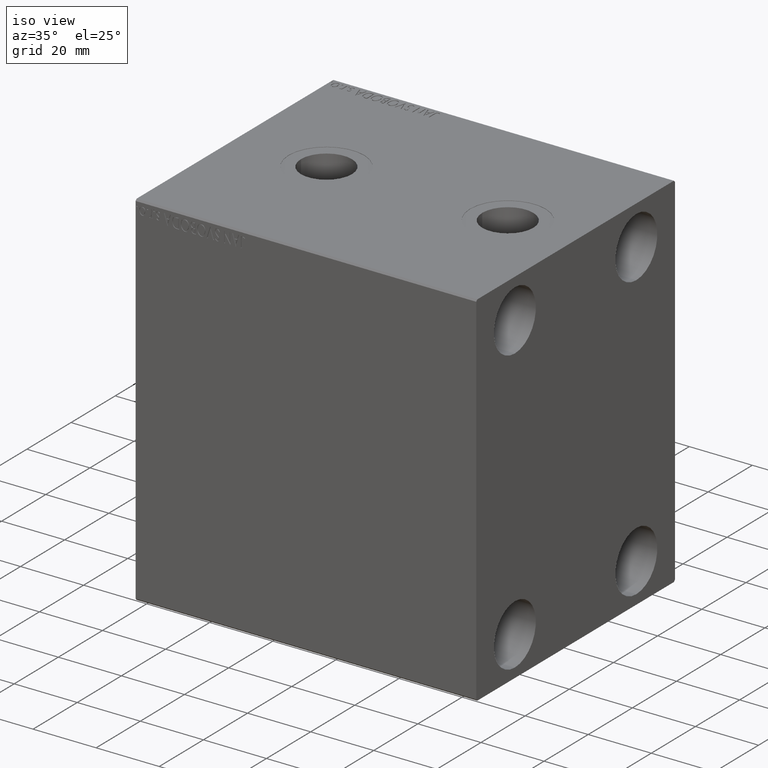
[diagram: clean part render]
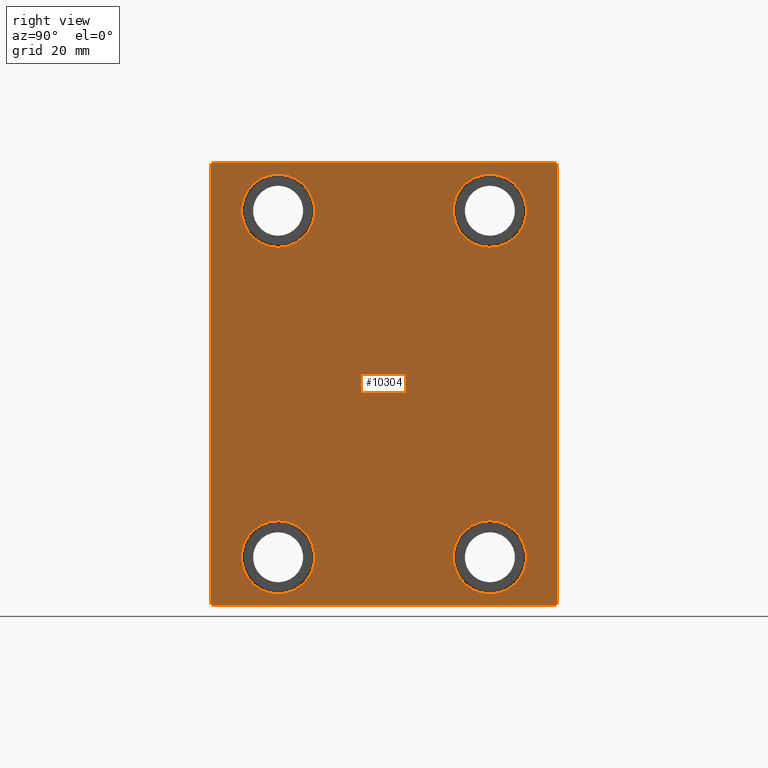
[diagram: tour spotlight — one face highlighted and labeled with its STEP entity id]
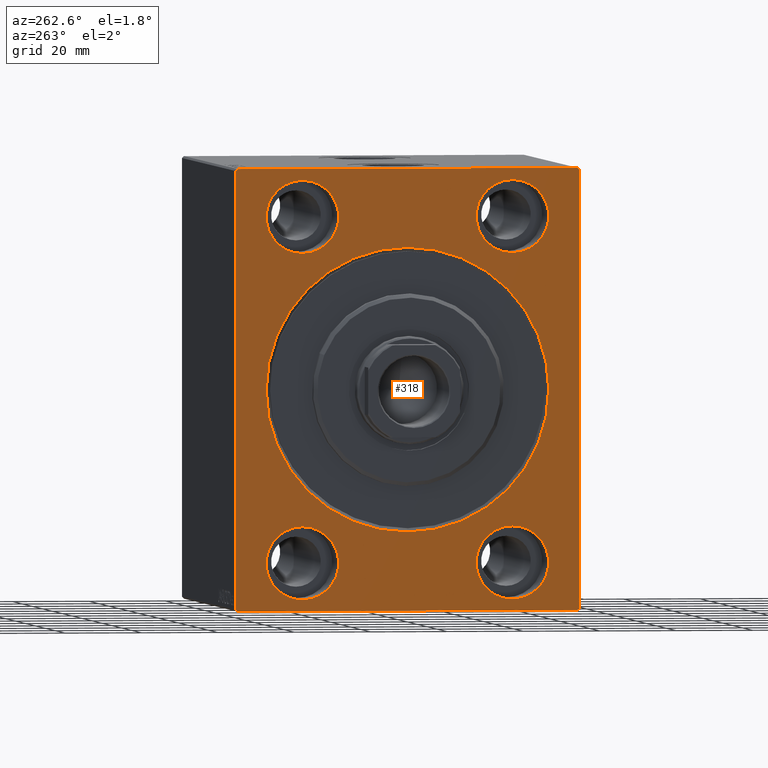
[diagram: tour spotlight — one face highlighted and labeled with its STEP entity id]
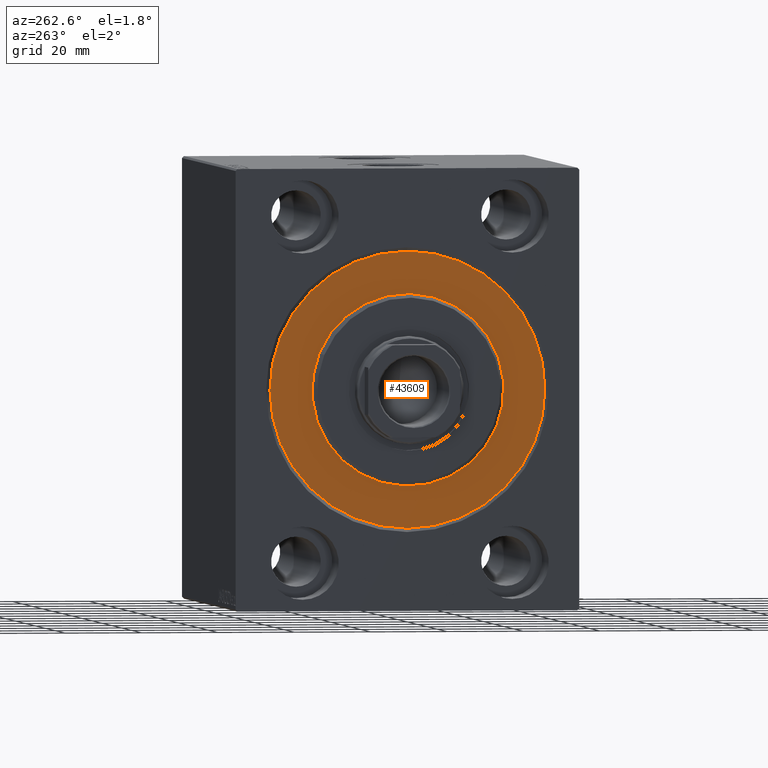
[diagram: tour spotlight — one face highlighted and labeled with its STEP entity id]
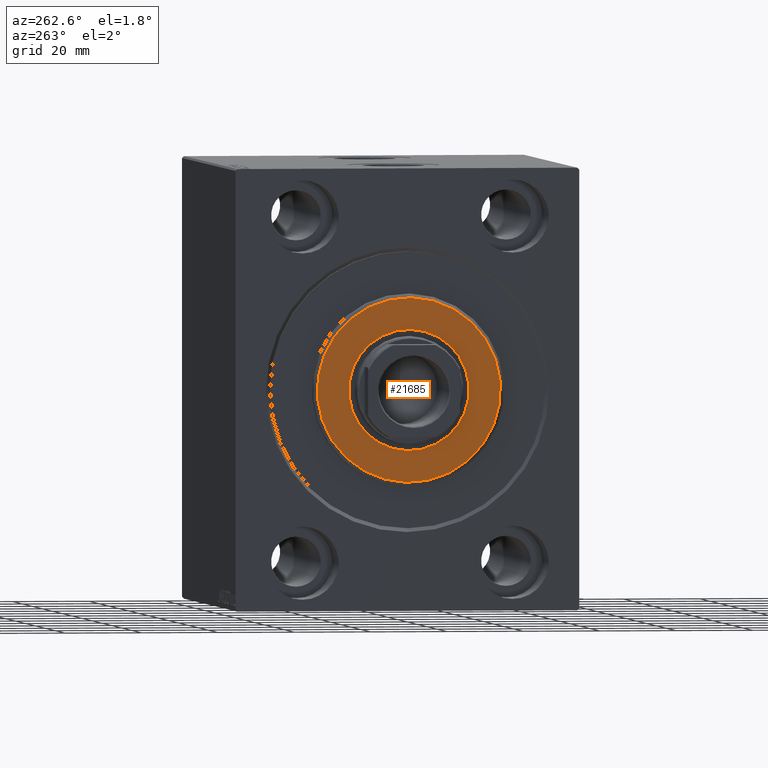
[diagram: tour spotlight — one face highlighted and labeled with its STEP entity id]
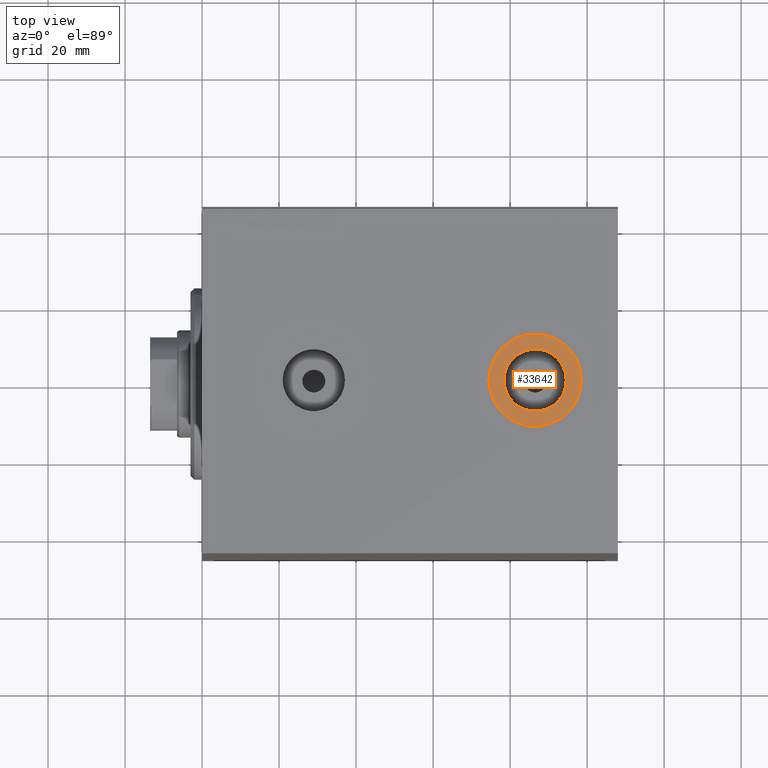
[diagram: tour spotlight — one face highlighted and labeled with its STEP entity id]
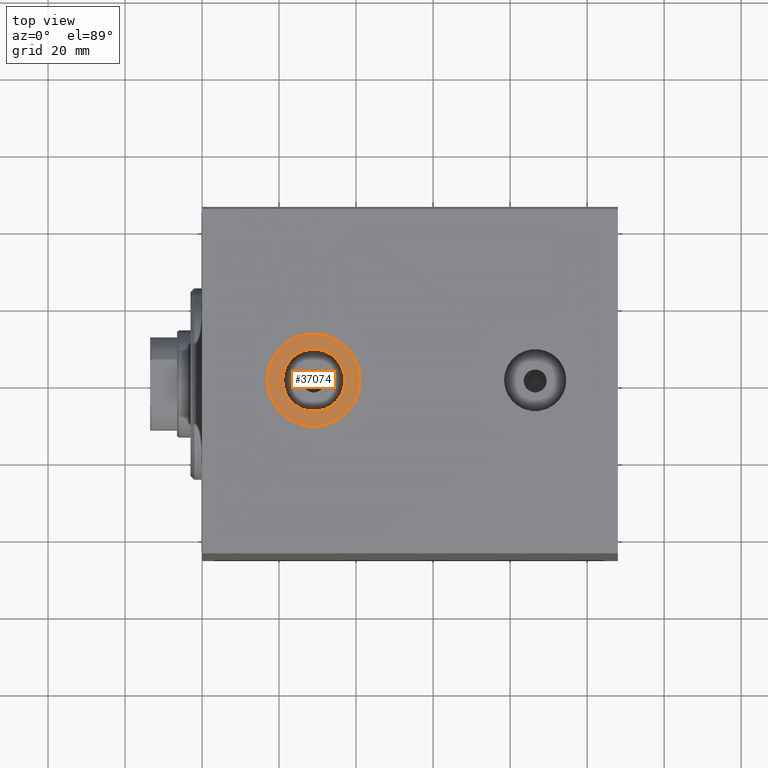
[diagram: tour spotlight — one face highlighted and labeled with its STEP entity id]
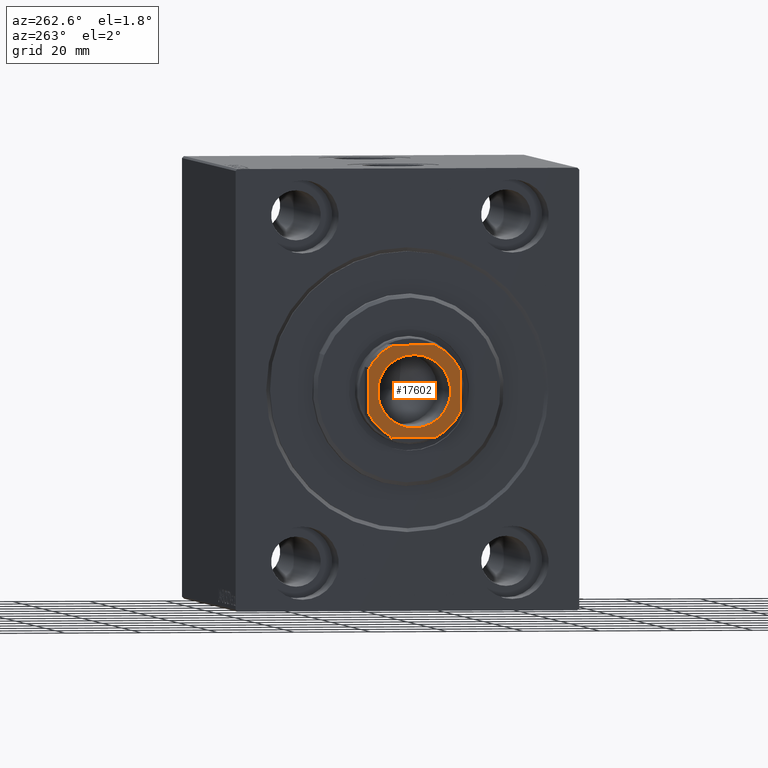
[diagram: tour spotlight — one face highlighted and labeled with its STEP entity id]
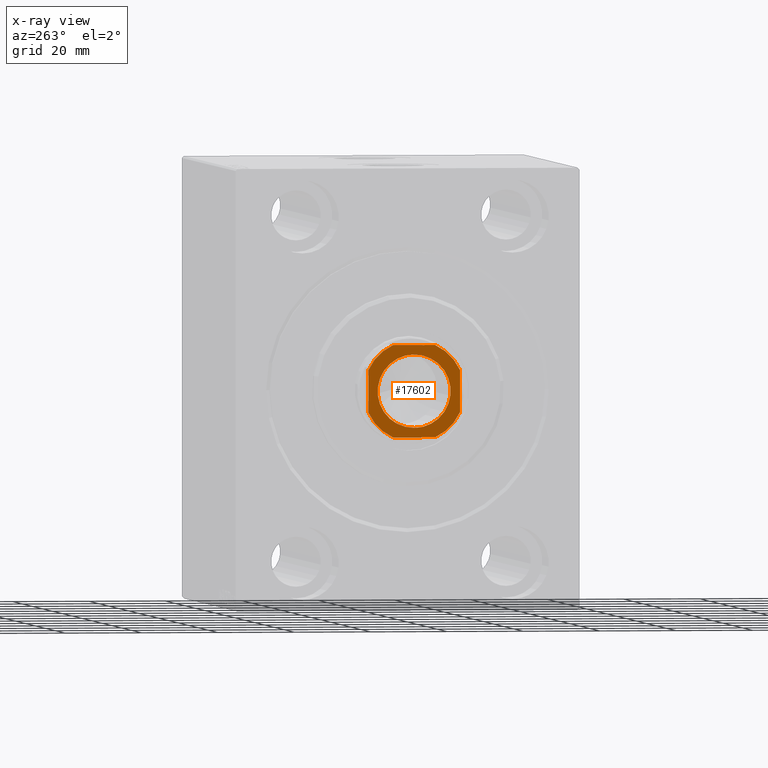
[diagram: x-ray of the same camera — body ghosted, this tour face saturated]
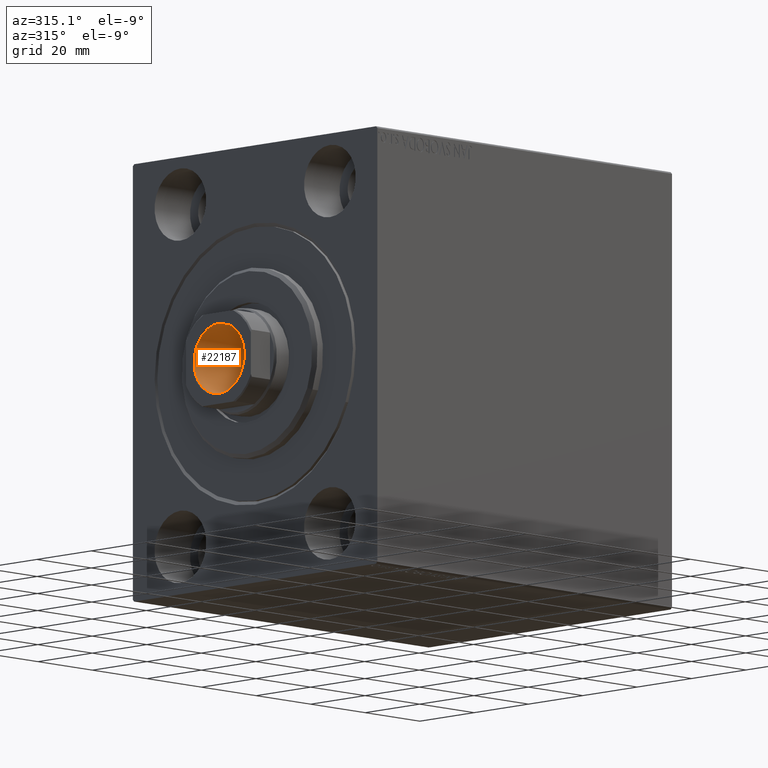
[diagram: tour spotlight — one face highlighted and labeled with its STEP entity id]
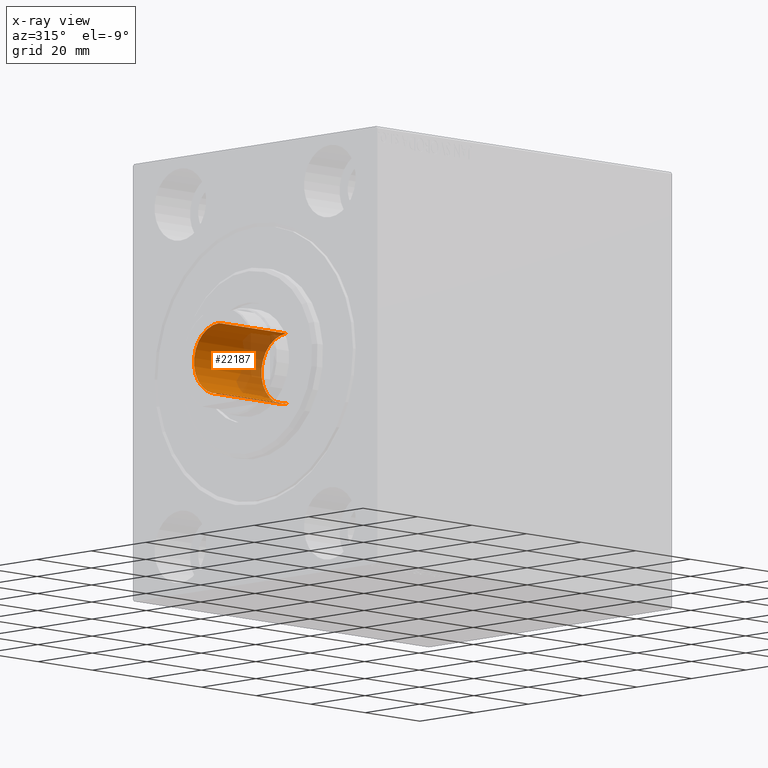
[diagram: x-ray of the same camera — body ghosted, this tour face saturated]
A machine part: a face-by-face anatomy tour. The part has 865 B-rep faces; the first image is the clean iso view, then the 8 largest visible faces are spotlighted one at a time (largest first), each with its STEP entity span.

Face 1 — right view, entity #10304. In plain terms, the highlighted planar face has unit normal (1, 0, 0).
Definition (entity closure, byte-faithful):
#628 = ORIENTED_EDGE ( 'NONE', *, *, #30317, .T. ) ;
#683 = AXIS2_PLACEMENT_3D ( 'NONE', #16046, #43463, #12917 ) ;
#1168 = EDGE_CURVE ( 'NONE', #32913, #8184, #42889, .T. ) ;
#2550 = ORIENTED_EDGE ( 'NONE', *, *, #12313, .T. ) ;
#2778 = VECTOR ( 'NONE', #16903, 1000.000000000000000 ) ;
#3304 = LINE ( 'NONE', #19608, #2778 ) ;
#3956 = EDGE_CURVE ( 'NONE', #39029, #24946, #7339, .T. ) ;
#4017 = ORIENTED_EDGE ( 'NONE', *, *, #16949, .T. ) ;
#5031 = EDGE_CURVE ( 'NONE', #5117, #32663, #38278, .T. ) ;
#5117 = VERTEX_POINT ( 'NONE', #9495 ) ;
#5896 = VERTEX_POINT ( 'NONE', #15630 ) ;
#6002 = AXIS2_PLACEMENT_3D ( 'NONE', #25160, #32733, #15789 ) ;
#6556 = EDGE_CURVE ( 'NONE', #24946, #39029, #20223, .T. ) ;
#6857 = VERTEX_POINT ( 'NONE', #25874 ) ;
#7061 = EDGE_LOOP ( 'NONE', ( #31252, #40210 ) ) ;
#7213 = DIRECTION ( 'NONE',  ( 0.000000000000000000, 0.000000000000000000, 1.000000000000000000 ) ) ;
#7339 = CIRCLE ( 'NONE', #15177, 9.500000000000001776 ) ;
#7540 = CARTESIAN_POINT ( 'NONE',  ( 108.0000000000000000, -27.50000000000000000, -35.49999999999998579 ) ) ;
#7558 = VECTOR ( 'NONE', #38270, 1000.000000000000000 ) ;
#7872 = CARTESIAN_POINT ( 'NONE',  ( 108.0000000000000000, 0.000000000000000000, 0.000000000000000000 ) ) ;
#8184 = VERTEX_POINT ( 'NONE', #21061 ) ;
#8944 = VECTOR ( 'NONE', #28766, 1000.000000000000114 ) ;
#9119 = DIRECTION ( 'NONE',  ( 0.000000000000000000, 0.000000000000000000, 1.000000000000000000 ) ) ;
#9210 = DIRECTION ( 'NONE',  ( -0.000000000000000000, 0.7071067811865474617, 0.7071067811865474617 ) ) ;
#9495 = CARTESIAN_POINT ( 'NONE',  ( 108.0000000000000000, 44.50000000000002842, 57.50000000000000711 ) ) ;
#9903 = LINE ( 'NONE', #26029, #28882 ) ;
#9936 = CIRCLE ( 'NONE', #683, 9.500000000000001776 ) ;
#10304 = ADVANCED_FACE ( 'NONE', ( #14561, #28153, #14117, #10982, #17681 ), #38411, .T. ) ;
#10531 = DIRECTION ( 'NONE',  ( 0.000000000000000000, -0.7071067811865474617, -0.7071067811865474617 ) ) ;
#10644 = EDGE_CURVE ( 'NONE', #31316, #21210, #24980, .T. ) ;
#10827 = AXIS2_PLACEMENT_3D ( 'NONE', #21592, #41654, #21157 ) ;
#10895 = ORIENTED_EDGE ( 'NONE', *, *, #10644, .T. ) ;
#10982 = FACE_BOUND ( 'NONE', #7061, .T. ) ;
#11801 = CARTESIAN_POINT ( 'NONE',  ( 108.0000000000000000, 44.50000000000001421, -57.50000000000000711 ) ) ;
#11974 = ORIENTED_EDGE ( 'NONE', *, *, #15280, .T. ) ;
#11990 = CARTESIAN_POINT ( 'NONE',  ( 108.0000000000000000, -45.00000000000000000, -57.00000000000003553 ) ) ;
#12313 = EDGE_CURVE ( 'NONE', #8184, #32913, #23091, .T. ) ;
#12389 = DIRECTION ( 'NONE',  ( 0.000000000000000000, 0.000000000000000000, 1.000000000000000000 ) ) ;
#12869 = DIRECTION ( 'NONE',  ( -0.000000000000000000, -0.7071067811865474617, 0.7071067811865474617 ) ) ;
#12917 = DIRECTION ( 'NONE',  ( 0.000000000000000000, 0.000000000000000000, 1.000000000000000000 ) ) ;
#13650 = VERTEX_POINT ( 'NONE', #7540 ) ;
#13669 = DIRECTION ( 'NONE',  ( 1.000000000000000000, 0.000000000000000000, 0.000000000000000000 ) ) ;
#13744 = DIRECTION ( 'NONE',  ( 0.000000000000000000, 0.000000000000000000, 1.000000000000000000 ) ) ;
#14026 = EDGE_CURVE ( 'NONE', #13650, #29673, #37399, .T. ) ;
#14117 = FACE_BOUND ( 'NONE', #38916, .T. ) ;
#14561 = FACE_BOUND ( 'NONE', #42857, .T. ) ;
#15177 = AXIS2_PLACEMENT_3D ( 'NONE', #33390, #39650, #9119 ) ;
#15280 = EDGE_CURVE ( 'NONE', #20555, #5896, #19033, .T. ) ;
#15630 = CARTESIAN_POINT ( 'NONE',  ( 108.0000000000000000, 45.00000000000001421, -57.00000000000003553 ) ) ;
#15731 = CARTESIAN_POINT ( 'NONE',  ( 108.0000000000000000, -27.49999999999998934, 45.00000000000000711 ) ) ;
#15789 = DIRECTION ( 'NONE',  ( 0.000000000000000000, 0.000000000000000000, 1.000000000000000000 ) ) ;
#15938 = VECTOR ( 'NONE', #18887, 1000.000000000000000 ) ;
#16046 = CARTESIAN_POINT ( 'NONE',  ( 108.0000000000000000, -27.50000000000000000, -44.99999999999998579 ) ) ;
#16866 = ORIENTED_EDGE ( 'NONE', *, *, #3956, .T. ) ;
#16903 = DIRECTION ( 'NONE',  ( 0.000000000000000000, 0.000000000000000000, -1.000000000000000000 ) ) ;
#16949 = EDGE_CURVE ( 'NONE', #18639, #6857, #41740, .T. ) ;
#17681 = FACE_OUTER_BOUND ( 'NONE', #25528, .T. ) ;
#17741 = EDGE_CURVE ( 'NONE', #5896, #28797, #41840, .T. ) ;
#18336 = EDGE_CURVE ( 'NONE', #32663, #33824, #38390, .T. ) ;
#18639 = VERTEX_POINT ( 'NONE', #38713 ) ;
#18887 = DIRECTION ( 'NONE',  ( 0.000000000000000000, -1.000000000000000000, -1.541976423090495387E-16 ) ) ;
#19033 = LINE ( 'NONE', #43314, #21048 ) ;
#19562 = LINE ( 'NONE', #26880, #39125 ) ;
#19608 = CARTESIAN_POINT ( 'NONE',  ( 108.0000000000000000, -45.00000000000000000, 57.49999999999999289 ) ) ;
#19764 = CARTESIAN_POINT ( 'NONE',  ( 108.0000000000000000, -27.50000000000000000, -54.49999999999998579 ) ) ;
#20116 = ORIENTED_EDGE ( 'NONE', *, *, #6556, .T. ) ;
#20223 = CIRCLE ( 'NONE', #29493, 9.500000000000001776 ) ;
#20555 = VERTEX_POINT ( 'NONE', #11801 ) ;
#20741 = AXIS2_PLACEMENT_3D ( 'NONE', #42347, #28971, #21403 ) ;
#20752 = ORIENTED_EDGE ( 'NONE', *, *, #32498, .T. ) ;
#21048 = VECTOR ( 'NONE', #9210, 1000.000000000000114 ) ;
#21061 = CARTESIAN_POINT ( 'NONE',  ( 108.0000000000000000, 27.49999999999998934, -54.49999999999998579 ) ) ;
#21157 = DIRECTION ( 'NONE',  ( 0.000000000000000000, 0.000000000000000000, 1.000000000000000000 ) ) ;
#21210 = VERTEX_POINT ( 'NONE', #33289 ) ;
#21403 = DIRECTION ( 'NONE',  ( 0.000000000000000000, 0.000000000000000000, 1.000000000000000000 ) ) ;
#21592 = CARTESIAN_POINT ( 'NONE',  ( 108.0000000000000000, 27.49999999999998934, -44.99999999999998579 ) ) ;
#21793 = AXIS2_PLACEMENT_3D ( 'NONE', #15731, #42930, #12389 ) ;
#22186 = CIRCLE ( 'NONE', #20741, 9.500000000000001776 ) ;
#22474 = DIRECTION ( 'NONE',  ( 0.000000000000000000, 1.000000000000000000, 0.000000000000000000 ) ) ;
#22642 = ORIENTED_EDGE ( 'NONE', *, *, #17741, .T. ) ;
#23091 = CIRCLE ( 'NONE', #6002, 9.500000000000001776 ) ;
#23280 = DIRECTION ( 'NONE',  ( -1.000000000000000000, -0.000000000000000000, -0.000000000000000000 ) ) ;
#23756 = CARTESIAN_POINT ( 'NONE',  ( 108.0000000000000000, 27.49999999999998934, -35.49999999999998579 ) ) ;
#24946 = VERTEX_POINT ( 'NONE', #39889 ) ;
#24980 = LINE ( 'NONE', #25421, #8944 ) ;
#25160 = CARTESIAN_POINT ( 'NONE',  ( 108.0000000000000000, 27.49999999999998934, -44.99999999999998579 ) ) ;
#25421 = CARTESIAN_POINT ( 'NONE',  ( 108.0000000000000000, -51.00000000000001421, -51.00000000000001421 ) ) ;
#25528 = EDGE_LOOP ( 'NONE', ( #37350, #39923, #628, #10895, #34108, #11974, #22642, #43517 ) ) ;
#25557 = CARTESIAN_POINT ( 'NONE',  ( 108.0000000000000000, 45.00000000000000000, 57.50000000000000711 ) ) ;
#25874 = CARTESIAN_POINT ( 'NONE',  ( 108.0000000000000000, -27.49999999999998934, 35.50000000000000711 ) ) ;
#26029 = CARTESIAN_POINT ( 'NONE',  ( 108.0000000000000000, -45.00000000000000000, -57.50000000000000711 ) ) ;
#26194 = EDGE_LOOP ( 'NONE', ( #20752, #4017 ) ) ;
#26880 = CARTESIAN_POINT ( 'NONE',  ( 108.0000000000000000, 51.00000000000001421, 51.00000000000001421 ) ) ;
#27634 = CARTESIAN_POINT ( 'NONE',  ( 108.0000000000000000, 27.50000000000001066, 54.50000000000000711 ) ) ;
#28153 = FACE_BOUND ( 'NONE', #26194, .T. ) ;
#28674 = CARTESIAN_POINT ( 'NONE',  ( 108.0000000000000000, 45.00000000000001421, -57.50000000000000711 ) ) ;
#28766 = DIRECTION ( 'NONE',  ( -0.000000000000000000, 0.7071067811865474617, -0.7071067811865474617 ) ) ;
#28797 = VERTEX_POINT ( 'NONE', #35362 ) ;
#28882 = VECTOR ( 'NONE', #22474, 1000.000000000000000 ) ;
#28971 = DIRECTION ( 'NONE',  ( -1.000000000000000000, -0.000000000000000000, -0.000000000000000000 ) ) ;
#29493 = AXIS2_PLACEMENT_3D ( 'NONE', #37819, #33593, #13744 ) ;
#29673 = VERTEX_POINT ( 'NONE', #19764 ) ;
#30317 = EDGE_CURVE ( 'NONE', #33824, #31316, #3304, .T. ) ;
#31142 = EDGE_CURVE ( 'NONE', #29673, #13650, #9936, .T. ) ;
#31252 = ORIENTED_EDGE ( 'NONE', *, *, #31142, .T. ) ;
#31316 = VERTEX_POINT ( 'NONE', #11990 ) ;
#31447 = EDGE_CURVE ( 'NONE', #28797, #5117, #19562, .T. ) ;
#31467 = CARTESIAN_POINT ( 'NONE',  ( 108.0000000000000000, -51.00000000000000000, 51.00000000000000000 ) ) ;
#32498 = EDGE_CURVE ( 'NONE', #6857, #18639, #22186, .T. ) ;
#32513 = VECTOR ( 'NONE', #10531, 1000.000000000000114 ) ;
#32663 = VERTEX_POINT ( 'NONE', #42782 ) ;
#32733 = DIRECTION ( 'NONE',  ( -1.000000000000000000, -0.000000000000000000, -0.000000000000000000 ) ) ;
#32913 = VERTEX_POINT ( 'NONE', #23756 ) ;
#33289 = CARTESIAN_POINT ( 'NONE',  ( 108.0000000000000000, -44.50000000000002842, -57.50000000000000711 ) ) ;
#33390 = CARTESIAN_POINT ( 'NONE',  ( 108.0000000000000000, 27.50000000000001066, 45.00000000000000711 ) ) ;
#33593 = DIRECTION ( 'NONE',  ( -1.000000000000000000, -0.000000000000000000, -0.000000000000000000 ) ) ;
#33824 = VERTEX_POINT ( 'NONE', #42301 ) ;
#34108 = ORIENTED_EDGE ( 'NONE', *, *, #42917, .T. ) ;
#34844 = DIRECTION ( 'NONE',  ( 0.000000000000000000, 0.000000000000000000, -1.000000000000000000 ) ) ;
#35362 = CARTESIAN_POINT ( 'NONE',  ( 108.0000000000000000, 45.00000000000000000, 57.00000000000000711 ) ) ;
#36869 = CARTESIAN_POINT ( 'NONE',  ( 108.0000000000000000, -27.50000000000000000, -44.99999999999998579 ) ) ;
#37350 = ORIENTED_EDGE ( 'NONE', *, *, #5031, .T. ) ;
#37399 = CIRCLE ( 'NONE', #41671, 9.500000000000001776 ) ;
#37819 = CARTESIAN_POINT ( 'NONE',  ( 108.0000000000000000, 27.50000000000001066, 45.00000000000000711 ) ) ;
#38270 = DIRECTION ( 'NONE',  ( 0.000000000000000000, -1.206764157201257045E-16, 1.000000000000000000 ) ) ;
#38278 = LINE ( 'NONE', #25557, #15938 ) ;
#38390 = LINE ( 'NONE', #31467, #32513 ) ;
#38411 = PLANE ( 'NONE',  #41675 ) ;
#38713 = CARTESIAN_POINT ( 'NONE',  ( 108.0000000000000000, -27.49999999999998934, 54.50000000000000711 ) ) ;
#38916 = EDGE_LOOP ( 'NONE', ( #20116, #16866 ) ) ;
#39029 = VERTEX_POINT ( 'NONE', #27634 ) ;
#39125 = VECTOR ( 'NONE', #12869, 1000.000000000000114 ) ;
#39650 = DIRECTION ( 'NONE',  ( -1.000000000000000000, -0.000000000000000000, -0.000000000000000000 ) ) ;
#39889 = CARTESIAN_POINT ( 'NONE',  ( 108.0000000000000000, 27.50000000000001066, 35.50000000000000711 ) ) ;
#39923 = ORIENTED_EDGE ( 'NONE', *, *, #18336, .T. ) ;
#40210 = ORIENTED_EDGE ( 'NONE', *, *, #14026, .T. ) ;
#41654 = DIRECTION ( 'NONE',  ( -1.000000000000000000, -0.000000000000000000, -0.000000000000000000 ) ) ;
#41671 = AXIS2_PLACEMENT_3D ( 'NONE', #36869, #23280, #7213 ) ;
#41675 = AXIS2_PLACEMENT_3D ( 'NONE', #7872, #13669, #34844 ) ;
#41740 = CIRCLE ( 'NONE', #21793, 9.500000000000001776 ) ;
#41840 = LINE ( 'NONE', #28674, #7558 ) ;
#42301 = CARTESIAN_POINT ( 'NONE',  ( 108.0000000000000000, -45.00000000000000000, 56.99999999999999289 ) ) ;
#42347 = CARTESIAN_POINT ( 'NONE',  ( 108.0000000000000000, -27.49999999999998934, 45.00000000000000711 ) ) ;
#42782 = CARTESIAN_POINT ( 'NONE',  ( 108.0000000000000000, -44.49999999999997158, 57.49999999999999289 ) ) ;
#42857 = EDGE_LOOP ( 'NONE', ( #2550, #43188 ) ) ;
#42889 = CIRCLE ( 'NONE', #10827, 9.500000000000001776 ) ;
#42917 = EDGE_CURVE ( 'NONE', #21210, #20555, #9903, .T. ) ;
#42930 = DIRECTION ( 'NONE',  ( -1.000000000000000000, -0.000000000000000000, -0.000000000000000000 ) ) ;
#43188 = ORIENTED_EDGE ( 'NONE', *, *, #1168, .T. ) ;
#43314 = CARTESIAN_POINT ( 'NONE',  ( 108.0000000000000000, 51.00000000000001421, -51.00000000000001421 ) ) ;
#43463 = DIRECTION ( 'NONE',  ( -1.000000000000000000, -0.000000000000000000, -0.000000000000000000 ) ) ;
#43517 = ORIENTED_EDGE ( 'NONE', *, *, #31447, .T. ) ;

Face 2 — auxiliary view, entity #318. In plain terms, the highlighted planar face has unit normal (1, 0, 0).
Definition (entity closure, byte-faithful):
#123 = ORIENTED_EDGE ( 'NONE', *, *, #7926, .F. ) ;
#318 = ADVANCED_FACE ( 'NONE', ( #32334, #5371, #18971, #8494, #32559, #22092 ), #13788, .F. ) ;
#569 = ORIENTED_EDGE ( 'NONE', *, *, #27251, .F. ) ;
#866 = DIRECTION ( 'NONE',  ( -1.000000000000000000, 0.000000000000000000, 0.000000000000000000 ) ) ;
#944 = DIRECTION ( 'NONE',  ( 0.000000000000000000, 0.000000000000000000, -1.000000000000000000 ) ) ;
#946 = EDGE_CURVE ( 'NONE', #37444, #6416, #3761, .T. ) ;
#1060 = VERTEX_POINT ( 'NONE', #36773 ) ;
#1547 = DIRECTION ( 'NONE',  ( -1.000000000000000000, 0.000000000000000000, 0.000000000000000000 ) ) ;
#1698 = CARTESIAN_POINT ( 'NONE',  ( 0.000000000000000000, 44.50000000000002842, 57.50000000000000711 ) ) ;
#1748 = CIRCLE ( 'NONE', #26637, 9.500000000000001776 ) ;
#2203 = DIRECTION ( 'NONE',  ( 0.000000000000000000, 0.000000000000000000, 1.000000000000000000 ) ) ;
#2222 = DIRECTION ( 'NONE',  ( 0.000000000000000000, -0.7071067811865474617, -0.7071067811865474617 ) ) ;
#2601 = CIRCLE ( 'NONE', #8306, 37.00000000000003553 ) ;
#2898 = EDGE_CURVE ( 'NONE', #37444, #36819, #12504, .T. ) ;
#3328 = CARTESIAN_POINT ( 'NONE',  ( 0.000000000000000000, 44.50000000000002842, 57.50000000000000711 ) ) ;
#3761 = LINE ( 'NONE', #3328, #42162 ) ;
#3900 = EDGE_LOOP ( 'NONE', ( #6328, #33016 ) ) ;
#4115 = CARTESIAN_POINT ( 'NONE',  ( 0.000000000000000000, -27.49999999999998934, 45.00000000000000711 ) ) ;
#4521 = EDGE_CURVE ( 'NONE', #1060, #25202, #21721, .T. ) ;
#4603 = CIRCLE ( 'NONE', #27334, 9.500000000000001776 ) ;
#4806 = ORIENTED_EDGE ( 'NONE', *, *, #20539, .F. ) ;
#4877 = DIRECTION ( 'NONE',  ( 0.000000000000000000, 0.000000000000000000, 1.000000000000000000 ) ) ;
#4887 = CIRCLE ( 'NONE', #22711, 37.00000000000003553 ) ;
#5049 = CARTESIAN_POINT ( 'NONE',  ( 0.000000000000000000, 27.50000000000001066, 35.50000000000000711 ) ) ;
#5119 = DIRECTION ( 'NONE',  ( -1.000000000000000000, 0.000000000000000000, 0.000000000000000000 ) ) ;
#5371 = FACE_BOUND ( 'NONE', #3900, .T. ) ;
#5785 = EDGE_CURVE ( 'NONE', #16851, #15791, #43686, .T. ) ;
#5815 = ORIENTED_EDGE ( 'NONE', *, *, #946, .T. ) ;
#5910 = ORIENTED_EDGE ( 'NONE', *, *, #31684, .F. ) ;
#6244 = CARTESIAN_POINT ( 'NONE',  ( 0.000000000000000000, 45.00000000000000000, 57.50000000000000711 ) ) ;
#6328 = ORIENTED_EDGE ( 'NONE', *, *, #19787, .F. ) ;
#6343 = CIRCLE ( 'NONE', #36259, 9.500000000000001776 ) ;
#6383 = EDGE_LOOP ( 'NONE', ( #4806, #40785 ) ) ;
#6416 = VERTEX_POINT ( 'NONE', #17316 ) ;
#6494 = ORIENTED_EDGE ( 'NONE', *, *, #2898, .F. ) ;
#6497 = CARTESIAN_POINT ( 'NONE',  ( 0.000000000000000000, 44.50000000000001421, -57.50000000000000711 ) ) ;
#6663 = AXIS2_PLACEMENT_3D ( 'NONE', #20774, #10298, #6960 ) ;
#6887 = CARTESIAN_POINT ( 'NONE',  ( 0.000000000000000000, 0.000000000000000000, 0.000000000000000000 ) ) ;
#6923 = DIRECTION ( 'NONE',  ( -1.000000000000000000, 0.000000000000000000, 0.000000000000000000 ) ) ;
#6960 = DIRECTION ( 'NONE',  ( 0.000000000000000000, 0.000000000000000000, 1.000000000000000000 ) ) ;
#7926 = EDGE_CURVE ( 'NONE', #15791, #16851, #4603, .T. ) ;
#8144 = AXIS2_PLACEMENT_3D ( 'NONE', #4115, #34875, #17714 ) ;
#8204 = EDGE_CURVE ( 'NONE', #12952, #10478, #20960, .T. ) ;
#8303 = EDGE_CURVE ( 'NONE', #16371, #31163, #1748, .T. ) ;
#8306 = AXIS2_PLACEMENT_3D ( 'NONE', #37731, #17885, #944 ) ;
#8482 = CARTESIAN_POINT ( 'NONE',  ( 0.000000000000000000, 45.00000000000001421, -57.00000000000003553 ) ) ;
#8494 = FACE_BOUND ( 'NONE', #41593, .T. ) ;
#8901 = CARTESIAN_POINT ( 'NONE',  ( 0.000000000000000000, -27.50000000000000000, -44.99999999999998579 ) ) ;
#9234 = CARTESIAN_POINT ( 'NONE',  ( 0.000000000000000000, 27.49999999999998934, -44.99999999999998579 ) ) ;
#9632 = DIRECTION ( 'NONE',  ( 0.000000000000000000, -1.206764157201257045E-16, 1.000000000000000000 ) ) ;
#9790 = DIRECTION ( 'NONE',  ( 0.000000000000000000, 0.000000000000000000, -1.000000000000000000 ) ) ;
#9997 = CARTESIAN_POINT ( 'NONE',  ( 0.000000000000000000, -27.50000000000000000, -44.99999999999998579 ) ) ;
#10298 = DIRECTION ( 'NONE',  ( -1.000000000000000000, 0.000000000000000000, 0.000000000000000000 ) ) ;
#10478 = VERTEX_POINT ( 'NONE', #25906 ) ;
#10543 = VECTOR ( 'NONE', #17776, 1000.000000000000000 ) ;
#11050 = VECTOR ( 'NONE', #2222, 1000.000000000000114 ) ;
#11217 = ORIENTED_EDGE ( 'NONE', *, *, #5785, .F. ) ;
#12504 = LINE ( 'NONE', #6244, #25089 ) ;
#12918 = VECTOR ( 'NONE', #18290, 1000.000000000000114 ) ;
#12952 = VERTEX_POINT ( 'NONE', #36839 ) ;
#13348 = AXIS2_PLACEMENT_3D ( 'NONE', #8901, #5119, #15802 ) ;
#13372 = ORIENTED_EDGE ( 'NONE', *, *, #28382, .T. ) ;
#13386 = CARTESIAN_POINT ( 'NONE',  ( 0.000000000000000000, -44.50000000000002842, -57.50000000000000711 ) ) ;
#13389 = DIRECTION ( 'NONE',  ( 0.000000000000000000, 0.000000000000000000, 1.000000000000000000 ) ) ;
#13788 = PLANE ( 'NONE',  #34287 ) ;
#14046 = CIRCLE ( 'NONE', #13348, 9.500000000000001776 ) ;
#15028 = CARTESIAN_POINT ( 'NONE',  ( 0.000000000000000000, -45.00000000000000000, 57.49999999999999289 ) ) ;
#15628 = CARTESIAN_POINT ( 'NONE',  ( 0.000000000000000000, 27.49999999999998934, -54.49999999999998579 ) ) ;
#15791 = VERTEX_POINT ( 'NONE', #24489 ) ;
#15802 = DIRECTION ( 'NONE',  ( 0.000000000000000000, 0.000000000000000000, 1.000000000000000000 ) ) ;
#16258 = DIRECTION ( 'NONE',  ( 0.000000000000000000, 0.000000000000000000, 1.000000000000000000 ) ) ;
#16371 = VERTEX_POINT ( 'NONE', #15628 ) ;
#16851 = VERTEX_POINT ( 'NONE', #5049 ) ;
#17140 = DIRECTION ( 'NONE',  ( -0.000000000000000000, 0.7071067811865474617, -0.7071067811865474617 ) ) ;
#17316 = CARTESIAN_POINT ( 'NONE',  ( 0.000000000000000000, 45.00000000000000000, 57.00000000000000711 ) ) ;
#17714 = DIRECTION ( 'NONE',  ( 0.000000000000000000, 0.000000000000000000, 1.000000000000000000 ) ) ;
#17776 = DIRECTION ( 'NONE',  ( 0.000000000000000000, 1.000000000000000000, 0.000000000000000000 ) ) ;
#17885 = DIRECTION ( 'NONE',  ( 1.000000000000000000, 0.000000000000000000, 0.000000000000000000 ) ) ;
#18192 = CARTESIAN_POINT ( 'NONE',  ( 0.000000000000000000, -44.49999999999997158, 57.49999999999999289 ) ) ;
#18290 = DIRECTION ( 'NONE',  ( -0.000000000000000000, 0.7071067811865474617, 0.7071067811865474617 ) ) ;
#18372 = EDGE_CURVE ( 'NONE', #23574, #40419, #2601, .T. ) ;
#18422 = VECTOR ( 'NONE', #26332, 1000.000000000000114 ) ;
#18510 = CARTESIAN_POINT ( 'NONE',  ( 0.000000000000000000, -45.00000000000000000, 56.99999999999999289 ) ) ;
#18943 = CARTESIAN_POINT ( 'NONE',  ( 0.000000000000000000, -27.49999999999998934, 45.00000000000000711 ) ) ;
#18971 = FACE_BOUND ( 'NONE', #22659, .T. ) ;
#19247 = CARTESIAN_POINT ( 'NONE',  ( 0.000000000000000000, 45.00000000000001421, -57.50000000000000711 ) ) ;
#19294 = ORIENTED_EDGE ( 'NONE', *, *, #21889, .F. ) ;
#19629 = CARTESIAN_POINT ( 'NONE',  ( 0.000000000000000000, 0.000000000000000000, 0.000000000000000000 ) ) ;
#19787 = EDGE_CURVE ( 'NONE', #31163, #16371, #28272, .T. ) ;
#20030 = DIRECTION ( 'NONE',  ( -1.000000000000000000, 0.000000000000000000, 0.000000000000000000 ) ) ;
#20539 = EDGE_CURVE ( 'NONE', #38636, #33879, #14046, .T. ) ;
#20774 = CARTESIAN_POINT ( 'NONE',  ( 0.000000000000000000, 27.50000000000001066, 45.00000000000000711 ) ) ;
#20960 = CIRCLE ( 'NONE', #8144, 9.500000000000001776 ) ;
#21345 = LINE ( 'NONE', #21555, #10543 ) ;
#21555 = CARTESIAN_POINT ( 'NONE',  ( 0.000000000000000000, -45.00000000000000000, -57.50000000000000711 ) ) ;
#21593 = CARTESIAN_POINT ( 'NONE',  ( 0.000000000000000000, 27.50000000000001066, 45.00000000000000711 ) ) ;
#21721 = LINE ( 'NONE', #15028, #30808 ) ;
#21775 = VERTEX_POINT ( 'NONE', #42401 ) ;
#21889 = EDGE_CURVE ( 'NONE', #38933, #27360, #21345, .T. ) ;
#22092 = FACE_OUTER_BOUND ( 'NONE', #37656, .T. ) ;
#22659 = EDGE_LOOP ( 'NONE', ( #5910, #42434 ) ) ;
#22711 = AXIS2_PLACEMENT_3D ( 'NONE', #19629, #23187, #32779 ) ;
#23187 = DIRECTION ( 'NONE',  ( 1.000000000000000000, 0.000000000000000000, 0.000000000000000000 ) ) ;
#23312 = CARTESIAN_POINT ( 'NONE',  ( 0.000000000000000000, 0.000000000000000000, 37.00000000000003553 ) ) ;
#23574 = VERTEX_POINT ( 'NONE', #27650 ) ;
#23606 = DIRECTION ( 'NONE',  ( 1.000000000000000000, 0.000000000000000000, 0.000000000000000000 ) ) ;
#24489 = CARTESIAN_POINT ( 'NONE',  ( 0.000000000000000000, 27.50000000000001066, 54.50000000000000711 ) ) ;
#24914 = CARTESIAN_POINT ( 'NONE',  ( 0.000000000000000000, -27.50000000000000000, -54.49999999999998579 ) ) ;
#25089 = VECTOR ( 'NONE', #29438, 1000.000000000000000 ) ;
#25202 = VERTEX_POINT ( 'NONE', #32929 ) ;
#25821 = CARTESIAN_POINT ( 'NONE',  ( 0.000000000000000000, 27.49999999999998934, -44.99999999999998579 ) ) ;
#25906 = CARTESIAN_POINT ( 'NONE',  ( 0.000000000000000000, -27.49999999999998934, 54.50000000000000711 ) ) ;
#26329 = CIRCLE ( 'NONE', #29166, 9.500000000000001776 ) ;
#26332 = DIRECTION ( 'NONE',  ( -0.000000000000000000, -0.7071067811865474617, 0.7071067811865474617 ) ) ;
#26503 = CARTESIAN_POINT ( 'NONE',  ( 0.000000000000000000, 27.49999999999998934, -35.49999999999998579 ) ) ;
#26637 = AXIS2_PLACEMENT_3D ( 'NONE', #9234, #6923, #13389 ) ;
#26825 = AXIS2_PLACEMENT_3D ( 'NONE', #25821, #1547, #39206 ) ;
#27251 = EDGE_CURVE ( 'NONE', #21775, #6416, #40164, .T. ) ;
#27334 = AXIS2_PLACEMENT_3D ( 'NONE', #21593, #866, #4877 ) ;
#27360 = VERTEX_POINT ( 'NONE', #6497 ) ;
#27650 = CARTESIAN_POINT ( 'NONE',  ( 0.000000000000000000, 4.531193156845210737E-15, -37.00000000000003553 ) ) ;
#28272 = CIRCLE ( 'NONE', #26825, 9.500000000000001776 ) ;
#28382 = EDGE_CURVE ( 'NONE', #40419, #23574, #4887, .T. ) ;
#28746 = LINE ( 'NONE', #18510, #12918 ) ;
#29067 = CARTESIAN_POINT ( 'NONE',  ( 0.000000000000000000, -27.50000000000000000, -35.49999999999998579 ) ) ;
#29166 = AXIS2_PLACEMENT_3D ( 'NONE', #18943, #29398, #2203 ) ;
#29381 = EDGE_CURVE ( 'NONE', #38933, #25202, #40569, .T. ) ;
#29398 = DIRECTION ( 'NONE',  ( -1.000000000000000000, 0.000000000000000000, 0.000000000000000000 ) ) ;
#29438 = DIRECTION ( 'NONE',  ( 0.000000000000000000, -1.000000000000000000, -1.541976423090495387E-16 ) ) ;
#30341 = EDGE_CURVE ( 'NONE', #33879, #38636, #6343, .T. ) ;
#30808 = VECTOR ( 'NONE', #31298, 1000.000000000000000 ) ;
#31163 = VERTEX_POINT ( 'NONE', #26503 ) ;
#31298 = DIRECTION ( 'NONE',  ( 0.000000000000000000, 0.000000000000000000, -1.000000000000000000 ) ) ;
#31684 = EDGE_CURVE ( 'NONE', #10478, #12952, #26329, .T. ) ;
#32334 = FACE_BOUND ( 'NONE', #43389, .T. ) ;
#32401 = EDGE_CURVE ( 'NONE', #1060, #36819, #28746, .T. ) ;
#32559 = FACE_BOUND ( 'NONE', #6383, .T. ) ;
#32629 = VECTOR ( 'NONE', #9632, 1000.000000000000000 ) ;
#32779 = DIRECTION ( 'NONE',  ( 0.000000000000000000, 0.000000000000000000, -1.000000000000000000 ) ) ;
#32929 = CARTESIAN_POINT ( 'NONE',  ( 0.000000000000000000, -45.00000000000000000, -57.00000000000003553 ) ) ;
#33016 = ORIENTED_EDGE ( 'NONE', *, *, #8303, .F. ) ;
#33879 = VERTEX_POINT ( 'NONE', #24914 ) ;
#34107 = CARTESIAN_POINT ( 'NONE',  ( 0.000000000000000000, -44.50000000000002842, -57.50000000000000711 ) ) ;
#34287 = AXIS2_PLACEMENT_3D ( 'NONE', #6887, #23606, #9790 ) ;
#34875 = DIRECTION ( 'NONE',  ( -1.000000000000000000, 0.000000000000000000, 0.000000000000000000 ) ) ;
#35358 = ORIENTED_EDGE ( 'NONE', *, *, #18372, .T. ) ;
#35886 = LINE ( 'NONE', #8482, #11050 ) ;
#36259 = AXIS2_PLACEMENT_3D ( 'NONE', #9997, #20030, #16258 ) ;
#36442 = ORIENTED_EDGE ( 'NONE', *, *, #4521, .F. ) ;
#36773 = CARTESIAN_POINT ( 'NONE',  ( 0.000000000000000000, -45.00000000000000000, 56.99999999999999289 ) ) ;
#36819 = VERTEX_POINT ( 'NONE', #18192 ) ;
#36839 = CARTESIAN_POINT ( 'NONE',  ( 0.000000000000000000, -27.49999999999998934, 35.50000000000000711 ) ) ;
#37444 = VERTEX_POINT ( 'NONE', #1698 ) ;
#37656 = EDGE_LOOP ( 'NONE', ( #36442, #39549, #6494, #5815, #569, #39544, #19294, #38223 ) ) ;
#37731 = CARTESIAN_POINT ( 'NONE',  ( 0.000000000000000000, 0.000000000000000000, 0.000000000000000000 ) ) ;
#38223 = ORIENTED_EDGE ( 'NONE', *, *, #29381, .T. ) ;
#38636 = VERTEX_POINT ( 'NONE', #29067 ) ;
#38933 = VERTEX_POINT ( 'NONE', #34107 ) ;
#39206 = DIRECTION ( 'NONE',  ( 0.000000000000000000, 0.000000000000000000, 1.000000000000000000 ) ) ;
#39544 = ORIENTED_EDGE ( 'NONE', *, *, #41865, .T. ) ;
#39549 = ORIENTED_EDGE ( 'NONE', *, *, #32401, .T. ) ;
#40164 = LINE ( 'NONE', #19247, #32629 ) ;
#40419 = VERTEX_POINT ( 'NONE', #23312 ) ;
#40569 = LINE ( 'NONE', #13386, #18422 ) ;
#40785 = ORIENTED_EDGE ( 'NONE', *, *, #30341, .F. ) ;
#41593 = EDGE_LOOP ( 'NONE', ( #123, #11217 ) ) ;
#41865 = EDGE_CURVE ( 'NONE', #21775, #27360, #35886, .T. ) ;
#42162 = VECTOR ( 'NONE', #17140, 1000.000000000000114 ) ;
#42401 = CARTESIAN_POINT ( 'NONE',  ( 0.000000000000000000, 45.00000000000001421, -57.00000000000003553 ) ) ;
#42434 = ORIENTED_EDGE ( 'NONE', *, *, #8204, .F. ) ;
#43389 = EDGE_LOOP ( 'NONE', ( #13372, #35358 ) ) ;
#43686 = CIRCLE ( 'NONE', #6663, 9.500000000000001776 ) ;

Face 3 — auxiliary view, entity #43609. In plain terms, the highlighted planar face has unit normal (1, 0, -0).
Definition (entity closure, byte-faithful):
#1067 = EDGE_LOOP ( 'NONE', ( #41328, #41632 ) ) ;
#5488 = EDGE_CURVE ( 'NONE', #29870, #33450, #38681, .T. ) ;
#9108 = CARTESIAN_POINT ( 'NONE',  ( 0.000000000000000000, 0.000000000000000000, 0.000000000000000000 ) ) ;
#9142 = VERTEX_POINT ( 'NONE', #21969 ) ;
#12719 = FACE_BOUND ( 'NONE', #1067, .T. ) ;
#15202 = DIRECTION ( 'NONE',  ( 0.000000000000000000, 0.000000000000000000, -1.000000000000000000 ) ) ;
#15574 = CIRCLE ( 'NONE', #37618, 25.00000000000000000 ) ;
#16282 = CIRCLE ( 'NONE', #37622, 36.00000000000000000 ) ;
#17923 = CARTESIAN_POINT ( 'NONE',  ( 0.000000000000000000, 3.061616997868383043E-15, -25.00000000000000000 ) ) ;
#18144 = ORIENTED_EDGE ( 'NONE', *, *, #5488, .F. ) ;
#18503 = EDGE_LOOP ( 'NONE', ( #18144, #32916 ) ) ;
#19163 = VERTEX_POINT ( 'NONE', #17923 ) ;
#19624 = DIRECTION ( 'NONE',  ( 0.000000000000000000, 0.000000000000000000, -1.000000000000000000 ) ) ;
#20353 = AXIS2_PLACEMENT_3D ( 'NONE', #43474, #26513, #24488 ) ;
#21969 = CARTESIAN_POINT ( 'NONE',  ( 0.000000000000000000, 0.000000000000000000, 25.00000000000000000 ) ) ;
#22622 = CARTESIAN_POINT ( 'NONE',  ( 0.000000000000000000, 0.000000000000000000, -36.00000000000000000 ) ) ;
#23179 = DIRECTION ( 'NONE',  ( 1.000000000000000000, -0.000000000000000000, 0.000000000000000000 ) ) ;
#23463 = AXIS2_PLACEMENT_3D ( 'NONE', #36125, #23179, #19624 ) ;
#23841 = EDGE_CURVE ( 'NONE', #33450, #29870, #16282, .T. ) ;
#24488 = DIRECTION ( 'NONE',  ( 0.000000000000000000, 0.000000000000000000, 1.000000000000000000 ) ) ;
#24917 = DIRECTION ( 'NONE',  ( -1.000000000000000000, 0.000000000000000000, 0.000000000000000000 ) ) ;
#25454 = CARTESIAN_POINT ( 'NONE',  ( 0.000000000000000000, 0.000000000000000000, 0.000000000000000000 ) ) ;
#25627 = CARTESIAN_POINT ( 'NONE',  ( 0.000000000000000000, 4.408728476930470856E-15, 36.00000000000000000 ) ) ;
#26304 = FACE_OUTER_BOUND ( 'NONE', #18503, .T. ) ;
#26513 = DIRECTION ( 'NONE',  ( -1.000000000000000000, 0.000000000000000000, 0.000000000000000000 ) ) ;
#27052 = DIRECTION ( 'NONE',  ( -1.000000000000000000, 0.000000000000000000, 0.000000000000000000 ) ) ;
#27605 = EDGE_CURVE ( 'NONE', #9142, #19163, #38321, .T. ) ;
#29191 = EDGE_CURVE ( 'NONE', #19163, #9142, #15574, .T. ) ;
#29870 = VERTEX_POINT ( 'NONE', #22622 ) ;
#31921 = DIRECTION ( 'NONE',  ( 1.000000000000000000, -0.000000000000000000, 0.000000000000000000 ) ) ;
#32916 = ORIENTED_EDGE ( 'NONE', *, *, #23841, .F. ) ;
#33450 = VERTEX_POINT ( 'NONE', #25627 ) ;
#35172 = CARTESIAN_POINT ( 'NONE',  ( 0.000000000000000000, 0.000000000000000000, 0.000000000000000000 ) ) ;
#36125 = CARTESIAN_POINT ( 'NONE',  ( 0.000000000000000000, 0.000000000000000000, 0.000000000000000000 ) ) ;
#37618 = AXIS2_PLACEMENT_3D ( 'NONE', #25454, #31921, #15202 ) ;
#37622 = AXIS2_PLACEMENT_3D ( 'NONE', #35172, #24917, #38516 ) ;
#38321 = CIRCLE ( 'NONE', #23463, 25.00000000000000000 ) ;
#38516 = DIRECTION ( 'NONE',  ( 0.000000000000000000, 0.000000000000000000, 1.000000000000000000 ) ) ;
#38681 = CIRCLE ( 'NONE', #42987, 36.00000000000000000 ) ;
#40114 = PLANE ( 'NONE',  #20353 ) ;
#40653 = DIRECTION ( 'NONE',  ( 0.000000000000000000, 0.000000000000000000, 1.000000000000000000 ) ) ;
#41328 = ORIENTED_EDGE ( 'NONE', *, *, #27605, .F. ) ;
#41632 = ORIENTED_EDGE ( 'NONE', *, *, #29191, .F. ) ;
#42987 = AXIS2_PLACEMENT_3D ( 'NONE', #9108, #27052, #40653 ) ;
#43474 = CARTESIAN_POINT ( 'NONE',  ( 0.000000000000000000, 0.000000000000000000, 0.000000000000000000 ) ) ;
#43609 = ADVANCED_FACE ( 'NONE', ( #12719, #26304 ), #40114, .F. ) ;

Face 4 — auxiliary view, entity #21685. In plain terms, the highlighted planar face has unit normal (-1, 0, 0).
Definition (entity closure, byte-faithful):
#329 = CIRCLE ( 'NONE', #39477, 24.00000000000000711 ) ;
#506 = DIRECTION ( 'NONE',  ( 1.000000000000000000, -0.000000000000000000, 0.000000000000000000 ) ) ;
#3585 = VERTEX_POINT ( 'NONE', #42825 ) ;
#5478 = ORIENTED_EDGE ( 'NONE', *, *, #23450, .T. ) ;
#5600 = CIRCLE ( 'NONE', #31931, 15.75000000000000000 ) ;
#6274 = DIRECTION ( 'NONE',  ( -1.000000000000000000, 0.000000000000000000, -0.000000000000000000 ) ) ;
#6708 = CARTESIAN_POINT ( 'NONE',  ( 3.000000000000000000, 0.000000000000000000, 0.000000000000000000 ) ) ;
#7191 = FACE_OUTER_BOUND ( 'NONE', #28860, .T. ) ;
#9129 = AXIS2_PLACEMENT_3D ( 'NONE', #14542, #506, #27907 ) ;
#11732 = DIRECTION ( 'NONE',  ( 0.000000000000000000, 0.000000000000000000, -1.000000000000000000 ) ) ;
#14059 = DIRECTION ( 'NONE',  ( -1.000000000000000000, 0.000000000000000000, -0.000000000000000000 ) ) ;
#14542 = CARTESIAN_POINT ( 'NONE',  ( 3.000000000000000000, 0.000000000000000000, 0.000000000000000000 ) ) ;
#14795 = DIRECTION ( 'NONE',  ( 0.000000000000000000, 0.000000000000000000, -1.000000000000000000 ) ) ;
#17355 = ORIENTED_EDGE ( 'NONE', *, *, #25659, .T. ) ;
#19316 = CIRCLE ( 'NONE', #42099, 15.75000000000000000 ) ;
#20576 = AXIS2_PLACEMENT_3D ( 'NONE', #41531, #24597, #14795 ) ;
#21685 = ADVANCED_FACE ( 'NONE', ( #7191, #38391 ), #24571, .T. ) ;
#23450 = EDGE_CURVE ( 'NONE', #40550, #3585, #5600, .T. ) ;
#24571 = PLANE ( 'NONE',  #9129 ) ;
#24597 = DIRECTION ( 'NONE',  ( 1.000000000000000000, -0.000000000000000000, 0.000000000000000000 ) ) ;
#25659 = EDGE_CURVE ( 'NONE', #29569, #42968, #39788, .T. ) ;
#27648 = DIRECTION ( 'NONE',  ( 0.000000000000000000, 0.000000000000000000, -1.000000000000000000 ) ) ;
#27788 = ORIENTED_EDGE ( 'NONE', *, *, #40160, .T. ) ;
#27907 = DIRECTION ( 'NONE',  ( 0.000000000000000000, 0.000000000000000000, -1.000000000000000000 ) ) ;
#28860 = EDGE_LOOP ( 'NONE', ( #27788, #17355 ) ) ;
#29536 = EDGE_LOOP ( 'NONE', ( #40296, #5478 ) ) ;
#29569 = VERTEX_POINT ( 'NONE', #32253 ) ;
#31931 = AXIS2_PLACEMENT_3D ( 'NONE', #6708, #6274, #43728 ) ;
#32253 = CARTESIAN_POINT ( 'NONE',  ( 3.000000000000000000, 3.000384657911015469E-15, -24.00000000000000711 ) ) ;
#33071 = CARTESIAN_POINT ( 'NONE',  ( 3.000000000000000000, 1.928818708657080950E-15, -15.75000000000000000 ) ) ;
#33313 = EDGE_CURVE ( 'NONE', #3585, #40550, #19316, .T. ) ;
#35378 = CARTESIAN_POINT ( 'NONE',  ( 3.000000000000000000, 0.000000000000000000, 0.000000000000000000 ) ) ;
#37694 = CARTESIAN_POINT ( 'NONE',  ( 3.000000000000000000, 0.000000000000000000, 0.000000000000000000 ) ) ;
#38391 = FACE_BOUND ( 'NONE', #29536, .T. ) ;
#39477 = AXIS2_PLACEMENT_3D ( 'NONE', #35378, #42279, #11732 ) ;
#39788 = CIRCLE ( 'NONE', #20576, 24.00000000000000711 ) ;
#40160 = EDGE_CURVE ( 'NONE', #42968, #29569, #329, .T. ) ;
#40296 = ORIENTED_EDGE ( 'NONE', *, *, #33313, .T. ) ;
#40550 = VERTEX_POINT ( 'NONE', #33071 ) ;
#41531 = CARTESIAN_POINT ( 'NONE',  ( 3.000000000000000000, 0.000000000000000000, 0.000000000000000000 ) ) ;
#42099 = AXIS2_PLACEMENT_3D ( 'NONE', #37694, #14059, #27648 ) ;
#42279 = DIRECTION ( 'NONE',  ( 1.000000000000000000, -0.000000000000000000, 0.000000000000000000 ) ) ;
#42825 = CARTESIAN_POINT ( 'NONE',  ( 3.000000000000000000, 0.000000000000000000, 15.75000000000000000 ) ) ;
#42968 = VERTEX_POINT ( 'NONE', #44006 ) ;
#43728 = DIRECTION ( 'NONE',  ( 0.000000000000000000, 0.000000000000000000, -1.000000000000000000 ) ) ;
#44006 = CARTESIAN_POINT ( 'NONE',  ( 3.000000000000000000, 0.000000000000000000, 24.00000000000000711 ) ) ;

Face 5 — top view, entity #33642. In plain terms, the highlighted planar face has unit normal (0, 0, 1).
Definition (entity closure, byte-faithful):
#426 = DIRECTION ( 'NONE',  ( 0.000000000000000000, 0.000000000000000000, 1.000000000000000000 ) ) ;
#846 = FACE_BOUND ( 'NONE', #7135, .T. ) ;
#1245 = DIRECTION ( 'NONE',  ( 0.000000000000000000, 0.000000000000000000, 1.000000000000000000 ) ) ;
#1635 = ORIENTED_EDGE ( 'NONE', *, *, #4937, .F. ) ;
#1746 = CIRCLE ( 'NONE', #31607, 12.00000000000001066 ) ;
#2677 = VERTEX_POINT ( 'NONE', #38646 ) ;
#3591 = EDGE_LOOP ( 'NONE', ( #28653, #10252 ) ) ;
#4212 = CIRCLE ( 'NONE', #34825, 8.084999999999995524 ) ;
#4937 = EDGE_CURVE ( 'NONE', #26971, #17250, #5250, .T. ) ;
#5250 = CIRCLE ( 'NONE', #25888, 8.084999999999995524 ) ;
#7101 = FACE_OUTER_BOUND ( 'NONE', #3591, .T. ) ;
#7135 = EDGE_LOOP ( 'NONE', ( #1635, #17114 ) ) ;
#7563 = CIRCLE ( 'NONE', #23918, 12.00000000000001066 ) ;
#10216 = DIRECTION ( 'NONE',  ( 0.000000000000000000, 0.000000000000000000, 1.000000000000000000 ) ) ;
#10252 = ORIENTED_EDGE ( 'NONE', *, *, #38282, .T. ) ;
#10597 = VERTEX_POINT ( 'NONE', #37481 ) ;
#12816 = CARTESIAN_POINT ( 'NONE',  ( 94.58499999999999375, -8.866364432770347722E-15, 57.39999999999999858 ) ) ;
#13559 = PLANE ( 'NONE',  #43288 ) ;
#14439 = DIRECTION ( 'NONE',  ( 1.000000000000000000, 0.000000000000000000, -0.000000000000000000 ) ) ;
#17114 = ORIENTED_EDGE ( 'NONE', *, *, #26894, .F. ) ;
#17250 = VERTEX_POINT ( 'NONE', #27399 ) ;
#20252 = CARTESIAN_POINT ( 'NONE',  ( 86.50000000000000000, -8.866364432770347722E-15, 57.39999999999999858 ) ) ;
#21371 = DIRECTION ( 'NONE',  ( 1.000000000000000000, 0.000000000000000000, 0.000000000000000000 ) ) ;
#22194 = CARTESIAN_POINT ( 'NONE',  ( 86.50000000000000000, -8.866364432770347722E-15, 57.39999999999999858 ) ) ;
#23918 = AXIS2_PLACEMENT_3D ( 'NONE', #34740, #426, #21371 ) ;
#25888 = AXIS2_PLACEMENT_3D ( 'NONE', #36520, #36740, #43871 ) ;
#26894 = EDGE_CURVE ( 'NONE', #17250, #26971, #4212, .T. ) ;
#26971 = VERTEX_POINT ( 'NONE', #12816 ) ;
#27399 = CARTESIAN_POINT ( 'NONE',  ( 78.41499999999999204, -7.876237495659714933E-15, 57.39999999999999858 ) ) ;
#28653 = ORIENTED_EDGE ( 'NONE', *, *, #43624, .T. ) ;
#29773 = DIRECTION ( 'NONE',  ( 0.000000000000000000, 0.000000000000000000, 1.000000000000000000 ) ) ;
#31607 = AXIS2_PLACEMENT_3D ( 'NONE', #39806, #29773, #36246 ) ;
#33642 = ADVANCED_FACE ( 'NONE', ( #846, #7101 ), #13559, .T. ) ;
#34740 = CARTESIAN_POINT ( 'NONE',  ( 86.50000000000000000, -8.866364432770347722E-15, 57.39999999999999858 ) ) ;
#34825 = AXIS2_PLACEMENT_3D ( 'NONE', #22194, #1245, #35779 ) ;
#35779 = DIRECTION ( 'NONE',  ( 1.000000000000000000, 0.000000000000000000, 0.000000000000000000 ) ) ;
#36246 = DIRECTION ( 'NONE',  ( 1.000000000000000000, 0.000000000000000000, 0.000000000000000000 ) ) ;
#36520 = CARTESIAN_POINT ( 'NONE',  ( 86.50000000000000000, -8.866364432770347722E-15, 57.39999999999999858 ) ) ;
#36740 = DIRECTION ( 'NONE',  ( 0.000000000000000000, 0.000000000000000000, 1.000000000000000000 ) ) ;
#37481 = CARTESIAN_POINT ( 'NONE',  ( 98.50000000000000000, -8.866364432770347722E-15, 57.39999999999999858 ) ) ;
#38282 = EDGE_CURVE ( 'NONE', #2677, #10597, #1746, .T. ) ;
#38646 = CARTESIAN_POINT ( 'NONE',  ( 74.49999999999998579, -7.396788273793525944E-15, 57.39999999999999858 ) ) ;
#39806 = CARTESIAN_POINT ( 'NONE',  ( 86.50000000000000000, -8.866364432770347722E-15, 57.39999999999999858 ) ) ;
#43288 = AXIS2_PLACEMENT_3D ( 'NONE', #20252, #10216, #14439 ) ;
#43624 = EDGE_CURVE ( 'NONE', #10597, #2677, #7563, .T. ) ;
#43871 = DIRECTION ( 'NONE',  ( 1.000000000000000000, 0.000000000000000000, 0.000000000000000000 ) ) ;

Face 6 — top view, entity #37074. In plain terms, the highlighted planar face has unit normal (0, 0, 1).
Definition (entity closure, byte-faithful):
#1914 = ORIENTED_EDGE ( 'NONE', *, *, #36776, .T. ) ;
#3207 = EDGE_LOOP ( 'NONE', ( #1914, #28617 ) ) ;
#4570 = EDGE_CURVE ( 'NONE', #32897, #27075, #21602, .T. ) ;
#4774 = EDGE_CURVE ( 'NONE', #18309, #43078, #10230, .T. ) ;
#6597 = DIRECTION ( 'NONE',  ( 1.000000000000000000, 0.000000000000000000, 0.000000000000000000 ) ) ;
#7897 = CARTESIAN_POINT ( 'NONE',  ( 29.00000000000000000, -8.866364432770347722E-15, 57.39999999999999858 ) ) ;
#10163 = CARTESIAN_POINT ( 'NONE',  ( 29.00000000000000000, -8.866364432770347722E-15, 57.39999999999999858 ) ) ;
#10230 = CIRCLE ( 'NONE', #22339, 12.00000000000000000 ) ;
#11432 = CARTESIAN_POINT ( 'NONE',  ( 41.00000000000000000, -8.866364432770347722E-15, 57.39999999999999858 ) ) ;
#12613 = ORIENTED_EDGE ( 'NONE', *, *, #4570, .F. ) ;
#12856 = CARTESIAN_POINT ( 'NONE',  ( 20.91500000000000270, -7.876237495659713355E-15, 57.39999999999999858 ) ) ;
#13897 = DIRECTION ( 'NONE',  ( 0.000000000000000000, 0.000000000000000000, 1.000000000000000000 ) ) ;
#15576 = CARTESIAN_POINT ( 'NONE',  ( 29.00000000000000000, -8.866364432770347722E-15, 57.39999999999999858 ) ) ;
#16234 = DIRECTION ( 'NONE',  ( 0.000000000000000000, 0.000000000000000000, 1.000000000000000000 ) ) ;
#17467 = FACE_BOUND ( 'NONE', #31536, .T. ) ;
#18105 = AXIS2_PLACEMENT_3D ( 'NONE', #15576, #16234, #29610 ) ;
#18309 = VERTEX_POINT ( 'NONE', #30369 ) ;
#19290 = CARTESIAN_POINT ( 'NONE',  ( 37.08500000000000085, -8.866364432770347722E-15, 57.39999999999999858 ) ) ;
#21494 = DIRECTION ( 'NONE',  ( 0.000000000000000000, 0.000000000000000000, 1.000000000000000000 ) ) ;
#21602 = CIRCLE ( 'NONE', #37272, 8.084999999999999076 ) ;
#22339 = AXIS2_PLACEMENT_3D ( 'NONE', #34318, #30975, #34105 ) ;
#23768 = DIRECTION ( 'NONE',  ( 0.000000000000000000, 0.000000000000000000, 1.000000000000000000 ) ) ;
#27075 = VERTEX_POINT ( 'NONE', #19290 ) ;
#27490 = DIRECTION ( 'NONE',  ( 1.000000000000000000, 0.000000000000000000, -0.000000000000000000 ) ) ;
#28617 = ORIENTED_EDGE ( 'NONE', *, *, #4774, .T. ) ;
#29457 = AXIS2_PLACEMENT_3D ( 'NONE', #41091, #13897, #27490 ) ;
#29610 = DIRECTION ( 'NONE',  ( 1.000000000000000000, 0.000000000000000000, 0.000000000000000000 ) ) ;
#30369 = CARTESIAN_POINT ( 'NONE',  ( 16.99999999999999645, -7.396788273793524366E-15, 57.39999999999999858 ) ) ;
#30901 = CIRCLE ( 'NONE', #18105, 8.084999999999999076 ) ;
#30975 = DIRECTION ( 'NONE',  ( 0.000000000000000000, 0.000000000000000000, 1.000000000000000000 ) ) ;
#31536 = EDGE_LOOP ( 'NONE', ( #36367, #12613 ) ) ;
#31747 = DIRECTION ( 'NONE',  ( 1.000000000000000000, 0.000000000000000000, 0.000000000000000000 ) ) ;
#32897 = VERTEX_POINT ( 'NONE', #12856 ) ;
#34105 = DIRECTION ( 'NONE',  ( 1.000000000000000000, 0.000000000000000000, 0.000000000000000000 ) ) ;
#34318 = CARTESIAN_POINT ( 'NONE',  ( 29.00000000000000000, -8.866364432770347722E-15, 57.39999999999999858 ) ) ;
#36367 = ORIENTED_EDGE ( 'NONE', *, *, #37973, .F. ) ;
#36776 = EDGE_CURVE ( 'NONE', #43078, #18309, #42280, .T. ) ;
#37074 = ADVANCED_FACE ( 'NONE', ( #17467, #40863 ), #40644, .T. ) ;
#37272 = AXIS2_PLACEMENT_3D ( 'NONE', #7897, #21494, #31747 ) ;
#37973 = EDGE_CURVE ( 'NONE', #27075, #32897, #30901, .T. ) ;
#40644 = PLANE ( 'NONE',  #29457 ) ;
#40863 = FACE_OUTER_BOUND ( 'NONE', #3207, .T. ) ;
#41091 = CARTESIAN_POINT ( 'NONE',  ( 29.00000000000000000, -8.866364432770347722E-15, 57.39999999999999858 ) ) ;
#42280 = CIRCLE ( 'NONE', #42986, 12.00000000000000000 ) ;
#42986 = AXIS2_PLACEMENT_3D ( 'NONE', #10163, #23768, #6597 ) ;
#43078 = VERTEX_POINT ( 'NONE', #11432 ) ;

Face 7 — auxiliary view, entity #17602. An x-ray twin of the same camera follows (body ghosted, this face saturated) — the face is partly hidden behind the body. In plain terms, the highlighted planar face has unit normal (-1, 0, 0).
Definition (entity closure, byte-faithful):
#364 = VECTOR ( 'NONE', #42433, 1000.000000000000000 ) ;
#391 = CARTESIAN_POINT ( 'NONE',  ( -12.00000000000000178, 5.499090833947057000, 104.0000000000000142 ) ) ;
#407 = DIRECTION ( 'NONE',  ( 1.000000000000000000, 0.000000000000000000, 0.000000000000000000 ) ) ;
#551 = AXIS2_PLACEMENT_3D ( 'NONE', #28584, #42845, #12299 ) ;
#1556 = EDGE_CURVE ( 'NONE', #18856, #25232, #7064, .T. ) ;
#1988 = CARTESIAN_POINT ( 'NONE',  ( -11.99999999999999822, -12.00000000000000355, 104.0000000000000142 ) ) ;
#2721 = ORIENTED_EDGE ( 'NONE', *, *, #3898, .T. ) ;
#2770 = CARTESIAN_POINT ( 'NONE',  ( -12.00000000000000355, 11.99999999999999645, 104.0000000000000142 ) ) ;
#3147 = EDGE_CURVE ( 'NONE', #24639, #6183, #22975, .T. ) ;
#3461 = CARTESIAN_POINT ( 'NONE',  ( 12.00000000000000000, -5.499090833947013479, 104.0000000000000142 ) ) ;
#3464 = CARTESIAN_POINT ( 'NONE',  ( -5.499090833947052559, -12.00000000000000355, 104.0000000000000142 ) ) ;
#3898 = EDGE_CURVE ( 'NONE', #22017, #6212, #15793, .T. ) ;
#6183 = VERTEX_POINT ( 'NONE', #28730 ) ;
#6212 = VERTEX_POINT ( 'NONE', #11787 ) ;
#6766 = DIRECTION ( 'NONE',  ( -1.000000000000000000, -0.000000000000000000, -0.000000000000000000 ) ) ;
#6849 = CARTESIAN_POINT ( 'NONE',  ( 0.000000000000000000, 0.000000000000000000, 104.0000000000000142 ) ) ;
#7064 = LINE ( 'NONE', #7501, #34316 ) ;
#7201 = CARTESIAN_POINT ( 'NONE',  ( 0.000000000000000000, 0.000000000000000000, 104.0000000000000142 ) ) ;
#7501 = CARTESIAN_POINT ( 'NONE',  ( 11.99999999999999645, 11.99999999999999645, 104.0000000000000142 ) ) ;
#7679 = CIRCLE ( 'NONE', #551, 9.550000000000002487 ) ;
#7750 = VERTEX_POINT ( 'NONE', #18558 ) ;
#11032 = ORIENTED_EDGE ( 'NONE', *, *, #27710, .T. ) ;
#11216 = CARTESIAN_POINT ( 'NONE',  ( -12.00000000000000355, 11.99999999999999645, 104.0000000000000142 ) ) ;
#11600 = AXIS2_PLACEMENT_3D ( 'NONE', #7201, #28141, #38179 ) ;
#11787 = CARTESIAN_POINT ( 'NONE',  ( 5.499090833947004597, -12.00000000000000355, 104.0000000000000142 ) ) ;
#11829 = AXIS2_PLACEMENT_3D ( 'NONE', #6849, #40287, #20670 ) ;
#12008 = DIRECTION ( 'NONE',  ( 0.000000000000000000, -0.000000000000000000, -1.000000000000000000 ) ) ;
#12299 = DIRECTION ( 'NONE',  ( 1.000000000000000000, 0.000000000000000000, 0.000000000000000000 ) ) ;
#12683 = DIRECTION ( 'NONE',  ( 1.000000000000000000, 0.000000000000000000, 0.000000000000000000 ) ) ;
#13029 = CARTESIAN_POINT ( 'NONE',  ( 0.000000000000000000, 0.000000000000000000, 104.0000000000000142 ) ) ;
#13381 = VERTEX_POINT ( 'NONE', #391 ) ;
#13692 = AXIS2_PLACEMENT_3D ( 'NONE', #29606, #12008, #16012 ) ;
#13773 = DIRECTION ( 'NONE',  ( -0.000000000000000000, 0.000000000000000000, 1.000000000000000000 ) ) ;
#14839 = EDGE_CURVE ( 'NONE', #6212, #18856, #30262, .T. ) ;
#15102 = EDGE_CURVE ( 'NONE', #13381, #43299, #25481, .T. ) ;
#15793 = LINE ( 'NONE', #1988, #20864 ) ;
#16012 = DIRECTION ( 'NONE',  ( 1.000000000000000000, 0.000000000000000000, 0.000000000000000000 ) ) ;
#16940 = AXIS2_PLACEMENT_3D ( 'NONE', #23811, #13773, #407 ) ;
#17602 = ADVANCED_FACE ( 'NONE', ( #30467, #37386 ), #24229, .T. ) ;
#18463 = ORIENTED_EDGE ( 'NONE', *, *, #1556, .T. ) ;
#18558 = CARTESIAN_POINT ( 'NONE',  ( 5.499090833947013479, 11.99999999999999645, 104.0000000000000142 ) ) ;
#18856 = VERTEX_POINT ( 'NONE', #3461 ) ;
#19518 = ORIENTED_EDGE ( 'NONE', *, *, #34198, .T. ) ;
#20670 = DIRECTION ( 'NONE',  ( 1.000000000000000000, 0.000000000000000000, 0.000000000000000000 ) ) ;
#20864 = VECTOR ( 'NONE', #12683, 1000.000000000000000 ) ;
#21099 = DIRECTION ( 'NONE',  ( -2.168404344971008868E-16, 1.000000000000000000, -0.000000000000000000 ) ) ;
#22017 = VERTEX_POINT ( 'NONE', #3464 ) ;
#22490 = EDGE_CURVE ( 'NONE', #6183, #24639, #7679, .T. ) ;
#22931 = EDGE_CURVE ( 'NONE', #25232, #7750, #36176, .T. ) ;
#22975 = CIRCLE ( 'NONE', #13692, 9.550000000000002487 ) ;
#23021 = CARTESIAN_POINT ( 'NONE',  ( -12.00000000000000000, -5.499090833947057888, 104.0000000000000142 ) ) ;
#23316 = VERTEX_POINT ( 'NONE', #39723 ) ;
#23372 = AXIS2_PLACEMENT_3D ( 'NONE', #37427, #27381, #33633 ) ;
#23811 = CARTESIAN_POINT ( 'NONE',  ( 0.000000000000000000, 0.000000000000000000, 104.0000000000000142 ) ) ;
#24229 = PLANE ( 'NONE',  #11829 ) ;
#24412 = ORIENTED_EDGE ( 'NONE', *, *, #3147, .T. ) ;
#24639 = VERTEX_POINT ( 'NONE', #28200 ) ;
#24804 = EDGE_LOOP ( 'NONE', ( #18463, #28252, #19518, #11032, #38093, #38241, #2721, #25035 ) ) ;
#25035 = ORIENTED_EDGE ( 'NONE', *, *, #14839, .T. ) ;
#25122 = VECTOR ( 'NONE', #6766, 1000.000000000000000 ) ;
#25232 = VERTEX_POINT ( 'NONE', #35838 ) ;
#25481 = LINE ( 'NONE', #11216, #364 ) ;
#25495 = CIRCLE ( 'NONE', #23372, 13.20000000000002238 ) ;
#26613 = DIRECTION ( 'NONE',  ( -0.000000000000000000, 0.000000000000000000, 1.000000000000000000 ) ) ;
#27381 = DIRECTION ( 'NONE',  ( -0.000000000000000000, 0.000000000000000000, 1.000000000000000000 ) ) ;
#27710 = EDGE_CURVE ( 'NONE', #23316, #13381, #25495, .T. ) ;
#28141 = DIRECTION ( 'NONE',  ( -0.000000000000000000, 0.000000000000000000, 1.000000000000000000 ) ) ;
#28200 = CARTESIAN_POINT ( 'NONE',  ( -9.550000000000002487, 1.169537693185722558E-15, 104.0000000000000142 ) ) ;
#28252 = ORIENTED_EDGE ( 'NONE', *, *, #22931, .T. ) ;
#28584 = CARTESIAN_POINT ( 'NONE',  ( 0.000000000000000000, 0.000000000000000000, 104.0000000000000142 ) ) ;
#28730 = CARTESIAN_POINT ( 'NONE',  ( 9.550000000000002487, 0.000000000000000000, 104.0000000000000142 ) ) ;
#29606 = CARTESIAN_POINT ( 'NONE',  ( 0.000000000000000000, 0.000000000000000000, 104.0000000000000142 ) ) ;
#29998 = ORIENTED_EDGE ( 'NONE', *, *, #22490, .T. ) ;
#30262 = CIRCLE ( 'NONE', #37366, 13.20000000000000107 ) ;
#30467 = FACE_BOUND ( 'NONE', #41128, .T. ) ;
#33306 = LINE ( 'NONE', #2770, #25122 ) ;
#33633 = DIRECTION ( 'NONE',  ( 1.000000000000000000, 0.000000000000000000, 0.000000000000000000 ) ) ;
#33648 = CIRCLE ( 'NONE', #11600, 13.20000000000002238 ) ;
#34198 = EDGE_CURVE ( 'NONE', #7750, #23316, #33306, .T. ) ;
#34316 = VECTOR ( 'NONE', #21099, 1000.000000000000000 ) ;
#34901 = EDGE_CURVE ( 'NONE', #43299, #22017, #33648, .T. ) ;
#35838 = CARTESIAN_POINT ( 'NONE',  ( 11.99999999999999645, 5.499090833947010815, 104.0000000000000142 ) ) ;
#36176 = CIRCLE ( 'NONE', #16940, 13.19999999999999929 ) ;
#36226 = DIRECTION ( 'NONE',  ( 1.000000000000000000, 0.000000000000000000, 0.000000000000000000 ) ) ;
#37366 = AXIS2_PLACEMENT_3D ( 'NONE', #13029, #26613, #36226 ) ;
#37386 = FACE_OUTER_BOUND ( 'NONE', #24804, .T. ) ;
#37427 = CARTESIAN_POINT ( 'NONE',  ( 0.000000000000000000, 0.000000000000000000, 104.0000000000000142 ) ) ;
#38093 = ORIENTED_EDGE ( 'NONE', *, *, #15102, .T. ) ;
#38179 = DIRECTION ( 'NONE',  ( 1.000000000000000000, 0.000000000000000000, 0.000000000000000000 ) ) ;
#38241 = ORIENTED_EDGE ( 'NONE', *, *, #34901, .T. ) ;
#39723 = CARTESIAN_POINT ( 'NONE',  ( -5.499090833947067658, 11.99999999999999645, 104.0000000000000142 ) ) ;
#40287 = DIRECTION ( 'NONE',  ( -0.000000000000000000, 0.000000000000000000, 1.000000000000000000 ) ) ;
#41128 = EDGE_LOOP ( 'NONE', ( #29998, #24412 ) ) ;
#42433 = DIRECTION ( 'NONE',  ( 2.168404344971008868E-16, -1.000000000000000000, 0.000000000000000000 ) ) ;
#42845 = DIRECTION ( 'NONE',  ( 0.000000000000000000, -0.000000000000000000, -1.000000000000000000 ) ) ;
#43299 = VERTEX_POINT ( 'NONE', #23021 ) ;

Face 8 — auxiliary view, entity #22187. An x-ray twin of the same camera follows (body ghosted, this face saturated) — the face is partly hidden behind the body. In plain terms, the highlighted cylindrical surface (edge-blend (fillet) strip) has radius 9.25 mm, axis along (-1, 0, 0).
Definition (entity closure, byte-faithful):
#669 = VERTEX_POINT ( 'NONE', #35124 ) ;
#2358 = EDGE_CURVE ( 'NONE', #11123, #669, #31340, .T. ) ;
#3219 = CIRCLE ( 'NONE', #18906, 9.249999999999994671 ) ;
#3957 = EDGE_CURVE ( 'NONE', #36477, #39763, #5760, .T. ) ;
#5305 = CARTESIAN_POINT ( 'NONE',  ( -9.249999999999994671, 1.132798289211300909E-15, 79.00000000000001421 ) ) ;
#5397 = ORIENTED_EDGE ( 'NONE', *, *, #14324, .T. ) ;
#5760 = LINE ( 'NONE', #19366, #14464 ) ;
#6661 = AXIS2_PLACEMENT_3D ( 'NONE', #25706, #12123, #28839 ) ;
#6717 = CARTESIAN_POINT ( 'NONE',  ( 0.000000000000000000, 0.000000000000000000, 103.6999999999999886 ) ) ;
#7282 = DIRECTION ( 'NONE',  ( -0.000000000000000000, -0.000000000000000000, 1.000000000000000000 ) ) ;
#9238 = FACE_OUTER_BOUND ( 'NONE', #36310, .T. ) ;
#10860 = VECTOR ( 'NONE', #7282, 1000.000000000000000 ) ;
#11123 = VERTEX_POINT ( 'NONE', #33271 ) ;
#11865 = CARTESIAN_POINT ( 'NONE',  ( -9.249999999999994671, 1.132798289211300909E-15, 103.6999999999999886 ) ) ;
#12123 = DIRECTION ( 'NONE',  ( -0.000000000000000000, -0.000000000000000000, 1.000000000000000000 ) ) ;
#13068 = CIRCLE ( 'NONE', #6661, 9.249999999999994671 ) ;
#13943 = ORIENTED_EDGE ( 'NONE', *, *, #2358, .T. ) ;
#14324 = EDGE_CURVE ( 'NONE', #669, #39763, #3219, .T. ) ;
#14464 = VECTOR ( 'NONE', #32951, 1000.000000000000000 ) ;
#15039 = DIRECTION ( 'NONE',  ( -0.000000000000000000, -0.000000000000000000, 1.000000000000000000 ) ) ;
#15471 = ORIENTED_EDGE ( 'NONE', *, *, #3957, .F. ) ;
#18906 = AXIS2_PLACEMENT_3D ( 'NONE', #6717, #40163, #26781 ) ;
#19366 = CARTESIAN_POINT ( 'NONE',  ( -9.249999999999994671, 1.132798289211300909E-15, 104.0000000000000142 ) ) ;
#22187 = ADVANCED_FACE ( 'NONE', ( #9238 ), #42894, .F. ) ;
#25706 = CARTESIAN_POINT ( 'NONE',  ( 0.000000000000000000, 0.000000000000000000, 79.00000000000001421 ) ) ;
#26781 = DIRECTION ( 'NONE',  ( 1.000000000000000000, 0.000000000000000000, 0.000000000000000000 ) ) ;
#27778 = CARTESIAN_POINT ( 'NONE',  ( 9.249999999999994671, 0.000000000000000000, 104.0000000000000142 ) ) ;
#28839 = DIRECTION ( 'NONE',  ( 1.000000000000000000, 0.000000000000000000, 0.000000000000000000 ) ) ;
#31340 = LINE ( 'NONE', #27778, #10860 ) ;
#32951 = DIRECTION ( 'NONE',  ( -0.000000000000000000, -0.000000000000000000, 1.000000000000000000 ) ) ;
#33078 = CARTESIAN_POINT ( 'NONE',  ( 0.000000000000000000, 0.000000000000000000, 104.0000000000000142 ) ) ;
#33271 = CARTESIAN_POINT ( 'NONE',  ( 9.249999999999994671, 0.000000000000000000, 79.00000000000001421 ) ) ;
#35124 = CARTESIAN_POINT ( 'NONE',  ( 9.249999999999994671, 0.000000000000000000, 103.6999999999999886 ) ) ;
#35762 = DIRECTION ( 'NONE',  ( 1.000000000000000000, 0.000000000000000000, 0.000000000000000000 ) ) ;
#36310 = EDGE_LOOP ( 'NONE', ( #15471, #37876, #13943, #5397 ) ) ;
#36477 = VERTEX_POINT ( 'NONE', #5305 ) ;
#37700 = EDGE_CURVE ( 'NONE', #11123, #36477, #13068, .T. ) ;
#37876 = ORIENTED_EDGE ( 'NONE', *, *, #37700, .F. ) ;
#39003 = AXIS2_PLACEMENT_3D ( 'NONE', #33078, #15039, #35762 ) ;
#39763 = VERTEX_POINT ( 'NONE', #11865 ) ;
#40163 = DIRECTION ( 'NONE',  ( 0.000000000000000000, 0.000000000000000000, 1.000000000000000000 ) ) ;
#42894 = CYLINDRICAL_SURFACE ( 'NONE', #39003, 9.249999999999994671 ) ;